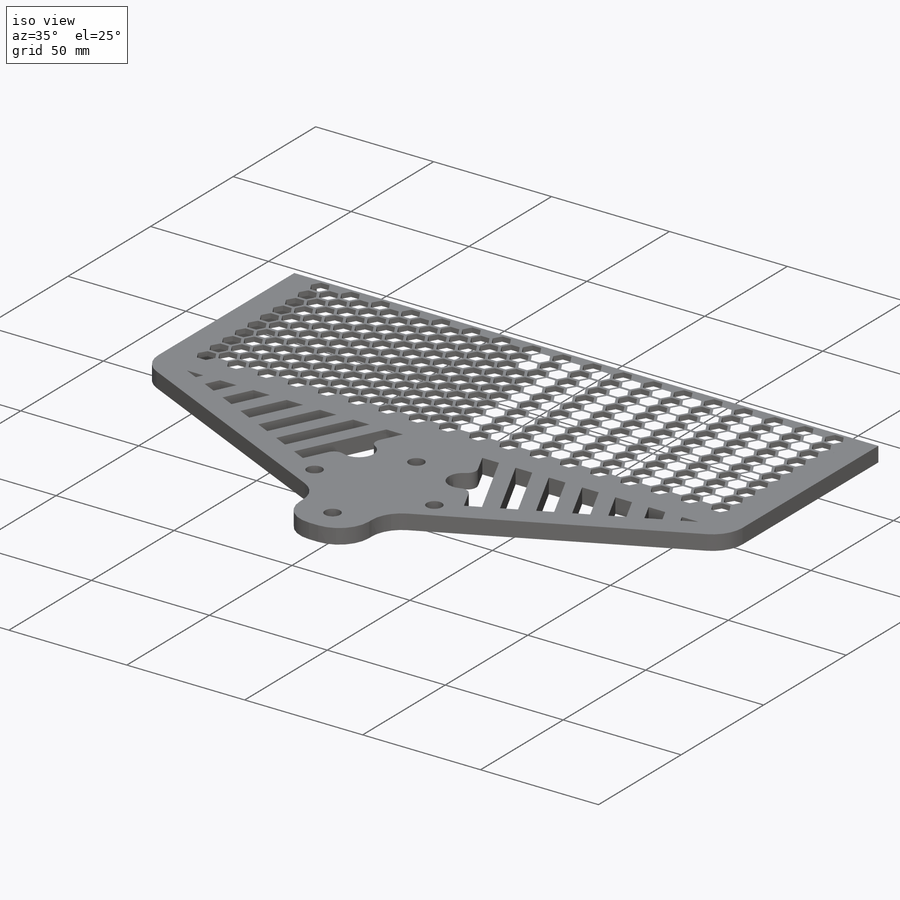
[diagram: iso view]
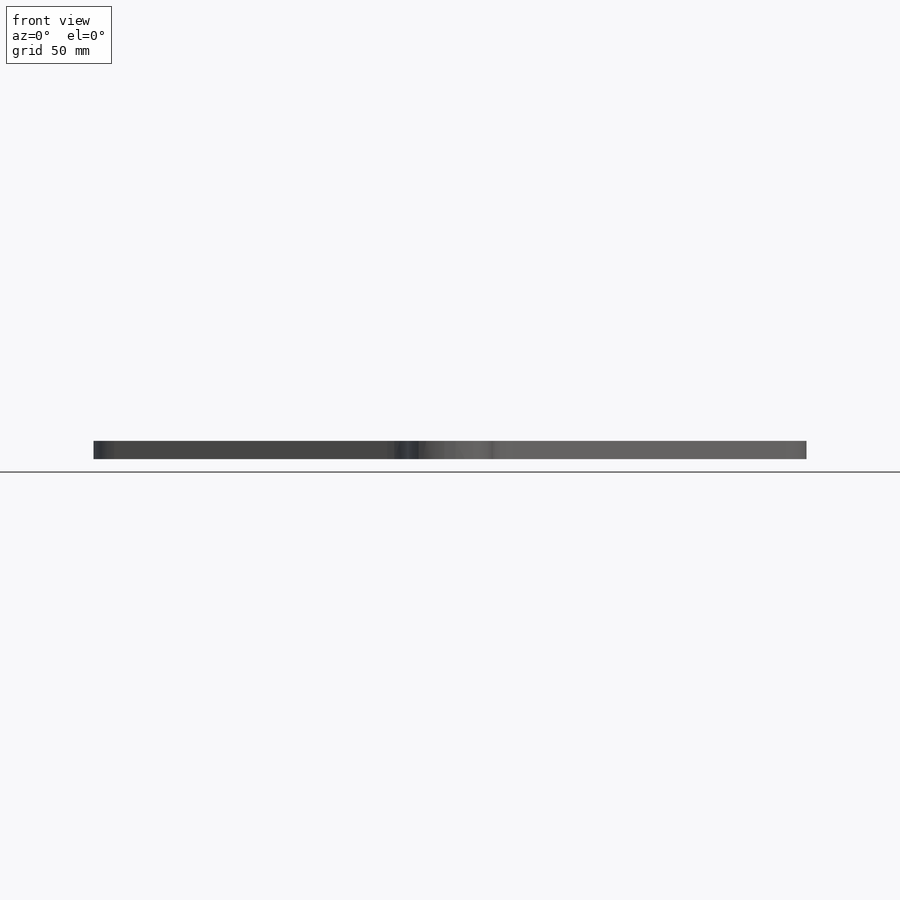
[diagram: front view]
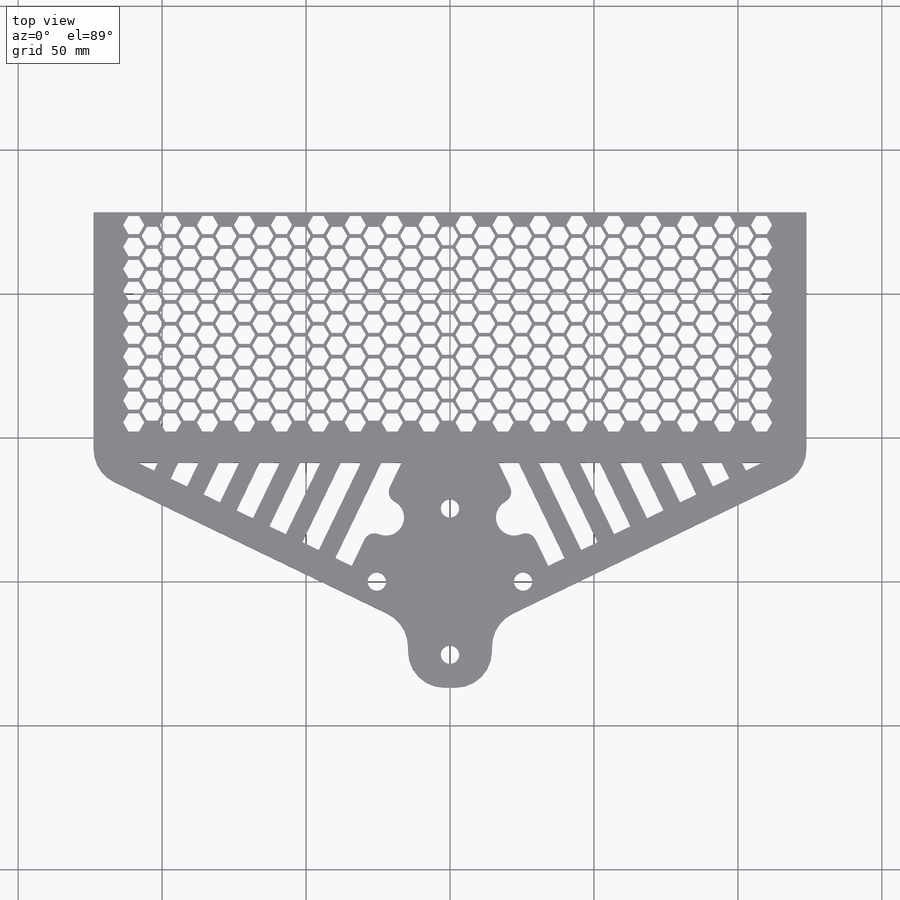
[diagram: top view]
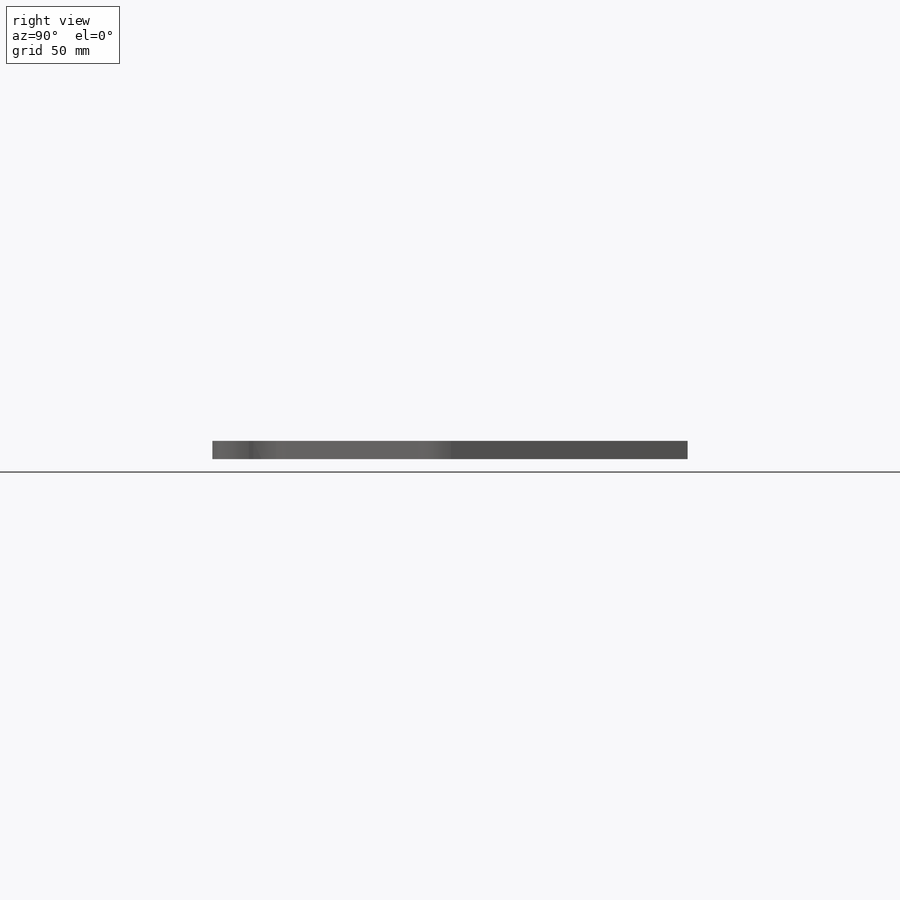
[diagram: right view]
SOLIDWORKS PART (.sldprt)
format: sldprt  version: not decoded by parser v0  size: 1,591,808 bytes
history: native  units: mm
features: sketch x7, cut_extrude x3, extrude x2, pattern_linear x2, material x1, hole x1, mirror x1 (+13 scaffold rows collapsed)
feature tree (30):
  scaffold x13  (default folders/planes/origin — collapsed)
  material  "Material <not specified>"
  sketch  "Sketch1"  dims[c1.D4=80.0mm c1.D5=50.8mm c1.D6=63.0mm c1.D13=12.7mm c1.D1=247.65mm c1.D2=9.525mm c1.D3=9.525mm c1.D7=~73.567025mm c2.D7=45.0deg c2.D8=77.47mm c2.D9=29.21mm c2.D10=50.8mm c2.D11=11.43mm c2.D12=12.7mm]
  extrude  "Boss-Extrude1"  Depth=6.35mm
  hole  "M6 Clearance Hole1"  Diameter=6.4mm Depth=6.35mm
  sketch  "Sketch6"
  sketch  "Sketch5"  dims[hole-wizard template sketch: 59 standard entries collapsed; hole parameters kept: c18.Thru Hole Dia.=6.4mm c18.Thru Hole Depth=6.35mm]
  sketch  "Sketch7"  dims[D11=6.35mm D12=3.81mm D1=9.525mm D2=9.525mm D3=9.525mm D4=6.35mm D5=6.35mm D6=6.35mm D7=6.35mm D8=6.35mm D9=6.35mm D10=6.35mm]
  cut_extrude  "Cut-Extrude1"  [1 undecoded]
  mirror  "Mirror1"
  sketch  "Sketch8"
  extrude  "Boss-Extrude2"  Depth=2mm
  sketch  "Sketch9"  dims[D2=6.35mm D1=4.445mm D3=4.445mm]
  cut_extrude  "Cut-Extrude2"  [1 undecoded]
  pattern_linear  "LPattern1"  Count1=18 Count2=10 Spacing1=12.827mm Spacing2=7.62mm
  sketch  "Sketch10"  dims[D1=6.35mm]
  cut_extrude  "Cut-Extrude3"  [1 undecoded]
  pattern_linear  "LPattern2"  Count1=17 Count2=9 Spacing1=12.827mm Spacing2=7.62mm
decode coverage: 10 of 16 modeling features carry decoded parameters
note: ~ marks probable driven/reference dimensions
note: 3 parameter values undecoded
summary: no parameter record found for 3 features
note: suppression state not decoded; provenance and decode notes live in map.json
